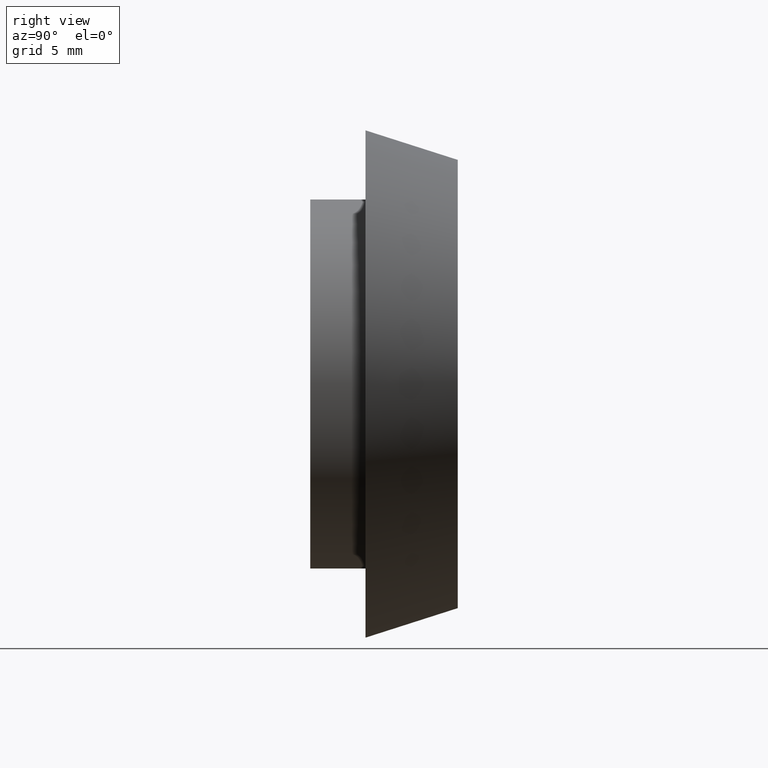
[diagram: clean part render]
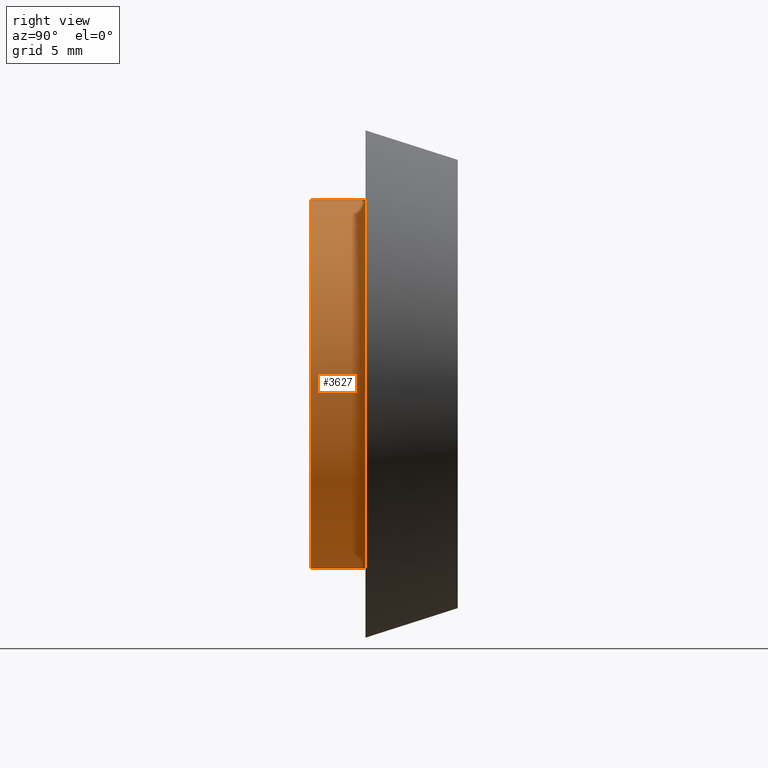
[diagram: same view with one face highlighted and labeled with its STEP entity id]
A machine part, right view. The second image highlights one B-rep face of the part: STEP entity #3627.
In plain terms, the highlighted cylindrical surface (partial cylindrical patch) has radius 10 mm, axis along (-0, -1, -0).
Its self-contained STEP definition (entity closure, byte-faithful):
#159 = FACE_OUTER_BOUND ( 'NONE', #7818, .T. ) ;
#499 = VECTOR ( 'NONE', #9634, 1000.000000000000000 ) ;
#824 = CYLINDRICAL_SURFACE ( 'NONE', #8014, 10.00000000000000000 ) ;
#986 = ORIENTED_EDGE ( 'NONE', *, *, #6645, .T. ) ;
#1085 = ORIENTED_EDGE ( 'NONE', *, *, #2098, .F. ) ;
#1225 = CARTESIAN_POINT ( 'NONE',  ( 1.224646799147353256E-15, 3.000000000000000444, 10.00000000000000000 ) ) ;
#1393 = DIRECTION ( 'NONE',  ( 0.000000000000000000, 0.000000000000000000, -1.000000000000000000 ) ) ;
#1409 = ORIENTED_EDGE ( 'NONE', *, *, #10619, .T. ) ;
#2098 = EDGE_CURVE ( 'NONE', #7080, #10052, #7273, .T. ) ;
#2370 = DIRECTION ( 'NONE',  ( -0.000000000000000000, -1.000000000000000000, -0.000000000000000000 ) ) ;
#2459 = CARTESIAN_POINT ( 'NONE',  ( 0.000000000000000000, -2.994831679295024775E-16, 0.000000000000000000 ) ) ;
#3076 = CARTESIAN_POINT ( 'NONE',  ( 0.000000000000000000, 3.000000000000000444, 0.000000000000000000 ) ) ;
#3187 = VECTOR ( 'NONE', #12352, 1000.000000000000000 ) ;
#3215 = ORIENTED_EDGE ( 'NONE', *, *, #7656, .F. ) ;
#3588 = DIRECTION ( 'NONE',  ( -0.000000000000000000, -1.000000000000000000, -0.000000000000000000 ) ) ;
#3627 = ADVANCED_FACE ( 'NONE', ( #159 ), #824, .T. ) ;
#4424 = CARTESIAN_POINT ( 'NONE',  ( 0.000000000000000000, 0.000000000000000000, -10.00000000000000000 ) ) ;
#5031 = DIRECTION ( 'NONE',  ( -0.000000000000000000, -1.000000000000000000, -0.000000000000000000 ) ) ;
#5711 = CARTESIAN_POINT ( 'NONE',  ( 0.000000000000000000, 0.000000000000000000, 0.000000000000000000 ) ) ;
#6026 = CARTESIAN_POINT ( 'NONE',  ( 0.000000000000000000, -2.994831679295024775E-16, -10.00000000000000000 ) ) ;
#6645 = EDGE_CURVE ( 'NONE', #9846, #9955, #10395, .T. ) ;
#7080 = VERTEX_POINT ( 'NONE', #9599 ) ;
#7273 = LINE ( 'NONE', #4424, #499 ) ;
#7656 = EDGE_CURVE ( 'NONE', #10052, #9955, #7662, .T. ) ;
#7662 = CIRCLE ( 'NONE', #7975, 10.00000000000000000 ) ;
#7818 = EDGE_LOOP ( 'NONE', ( #1409, #986, #3215, #1085 ) ) ;
#7975 = AXIS2_PLACEMENT_3D ( 'NONE', #2459, #2370, #1393 ) ;
#8014 = AXIS2_PLACEMENT_3D ( 'NONE', #5711, #3588, #12939 ) ;
#9213 = CIRCLE ( 'NONE', #10718, 10.00000000000000000 ) ;
#9599 = CARTESIAN_POINT ( 'NONE',  ( 0.000000000000000000, 3.000000000000000444, -10.00000000000000000 ) ) ;
#9634 = DIRECTION ( 'NONE',  ( -0.000000000000000000, -1.000000000000000000, -0.000000000000000000 ) ) ;
#9707 = CARTESIAN_POINT ( 'NONE',  ( 1.224646799147353256E-15, -2.994831679295024775E-16, 10.00000000000000000 ) ) ;
#9846 = VERTEX_POINT ( 'NONE', #1225 ) ;
#9955 = VERTEX_POINT ( 'NONE', #9707 ) ;
#10052 = VERTEX_POINT ( 'NONE', #6026 ) ;
#10395 = LINE ( 'NONE', #11260, #3187 ) ;
#10619 = EDGE_CURVE ( 'NONE', #7080, #9846, #9213, .T. ) ;
#10718 = AXIS2_PLACEMENT_3D ( 'NONE', #3076, #5031, #12264 ) ;
#11260 = CARTESIAN_POINT ( 'NONE',  ( 1.224646799147353256E-15, 0.000000000000000000, 10.00000000000000000 ) ) ;
#12264 = DIRECTION ( 'NONE',  ( 0.000000000000000000, 0.000000000000000000, -1.000000000000000000 ) ) ;
#12352 = DIRECTION ( 'NONE',  ( -0.000000000000000000, -1.000000000000000000, -0.000000000000000000 ) ) ;
#12939 = DIRECTION ( 'NONE',  ( 0.000000000000000000, 0.000000000000000000, -1.000000000000000000 ) ) ;